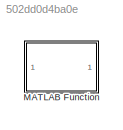
MODEL slx_502dd0d4ba0e
KIND model
CONFIG AbsTol = auto
CONFIG EnableMultiTasking = off
CONFIG FixedStep = auto
CONFIG MaxStep = auto
CONFIG MinStep = auto
CONFIG RelTol = 1e-3
CONFIG SampleTimeConstraint = Unconstrained
CONFIG SolverName = VariableStepAuto
CONFIG StartTime = 0.0
CONFIG StopTime = 10.0
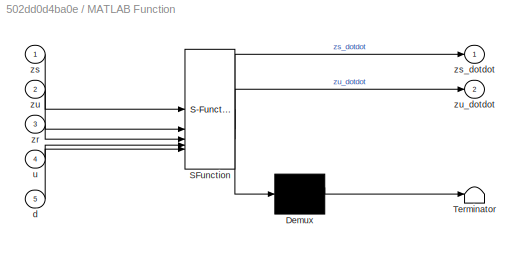
BLOCK [SubSystem] MATLAB Function
  ErrorFcn = Stateflow.Translate.translate
  LibrarySourceBlock = simulink/User-Defined\nFunctions/MATLAB Function
  PermitHierarchicalResolution = ExplicitOnly
  SFBlockType = MATLAB Function
  TreatAsAtomicUnit = on
BLOCK [Demux] MATLAB Function/ Demux 
  Outputs = 1
BLOCK [S-Function] MATLAB Function/ SFunction 
  EnableBusSupport = off
  FunctionName = sf_sfun
  PortCounts = [5 3]
  SFcnIsStateOwnerBlock = off
  SFunctionDeploymentMode = off
  Tag = Stateflow S-Function 2
BLOCK [Terminator] MATLAB Function/ Terminator 
BLOCK [Inport] MATLAB Function/d
  Port = 5
BLOCK [Inport] MATLAB Function/u
  Port = 4
BLOCK [Inport] MATLAB Function/zr
  Port = 3
BLOCK [Inport] MATLAB Function/zs
BLOCK [Outport] MATLAB Function/zs_dotdot
BLOCK [Inport] MATLAB Function/zu
  Port = 2
BLOCK [Outport] MATLAB Function/zu_dotdot
  Port = 2
CHART MATLAB Function states=1 transitions=1
  STATE_LABEL 'eML_blk_kernel()'
  STATE_LABEL 'SCRIPT:\nfunction [zs_dotdot,zu_dotdot] = fcn(zs,zu,zr,u,d)\nms=600; %kg\nmu=60;%kg\nks=18000; %N/m\nksn=1000; %N/m\nbc=2500; Ns/mu\nkf=200000; N/m\ncf=1000; Ns/m\nzs_dotdot=(u+d-fd-fs)/ms;\nzu_dotdot=(-u+fd+fs-ft-fb)/mu;\n\ny = u;\n'
CHART  states=0 transitions=0
